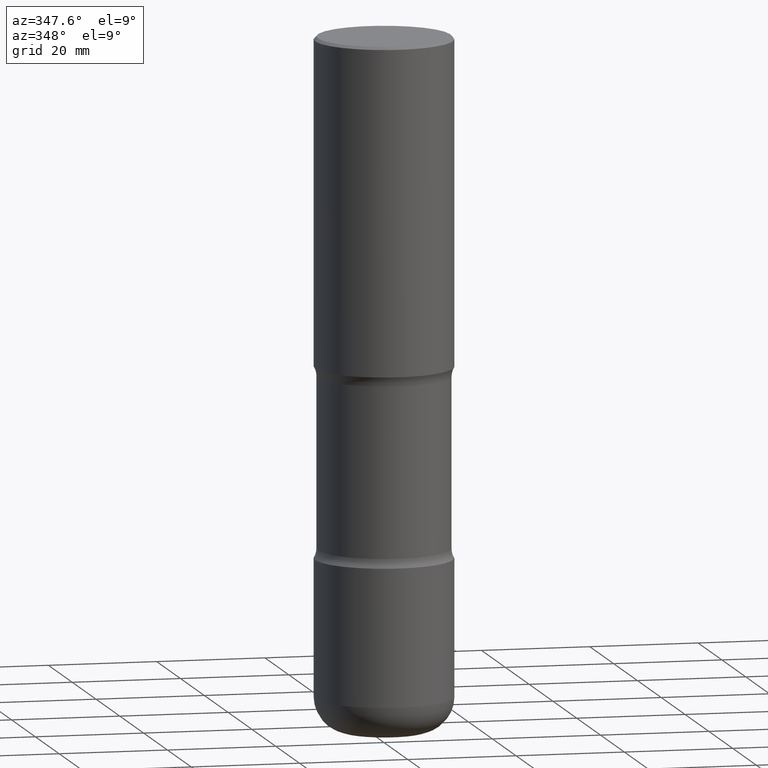
[diagram: clean part render]
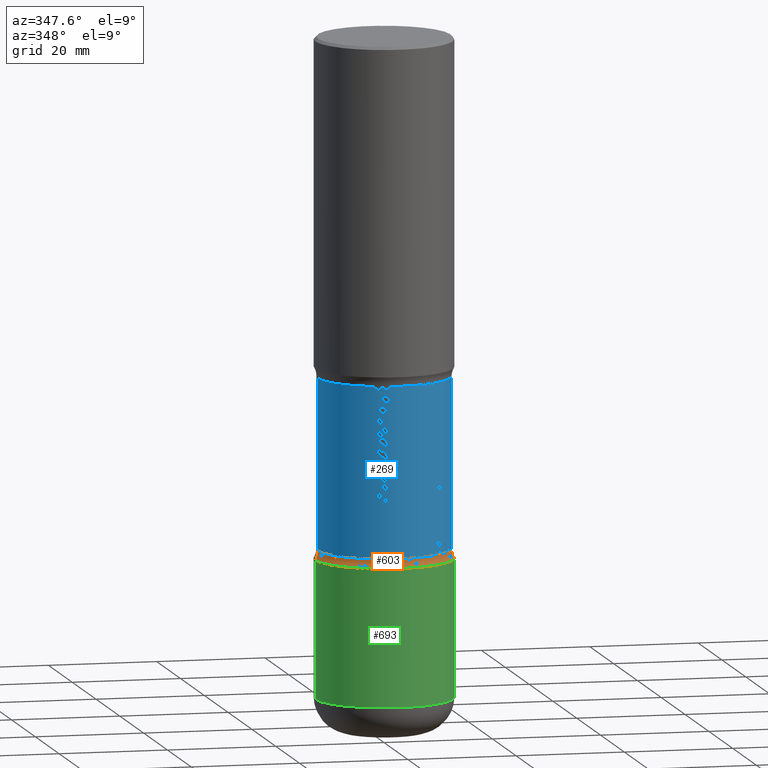
[diagram: same view with three faces highlighted in distinct colors, each labeled with its STEP entity id]
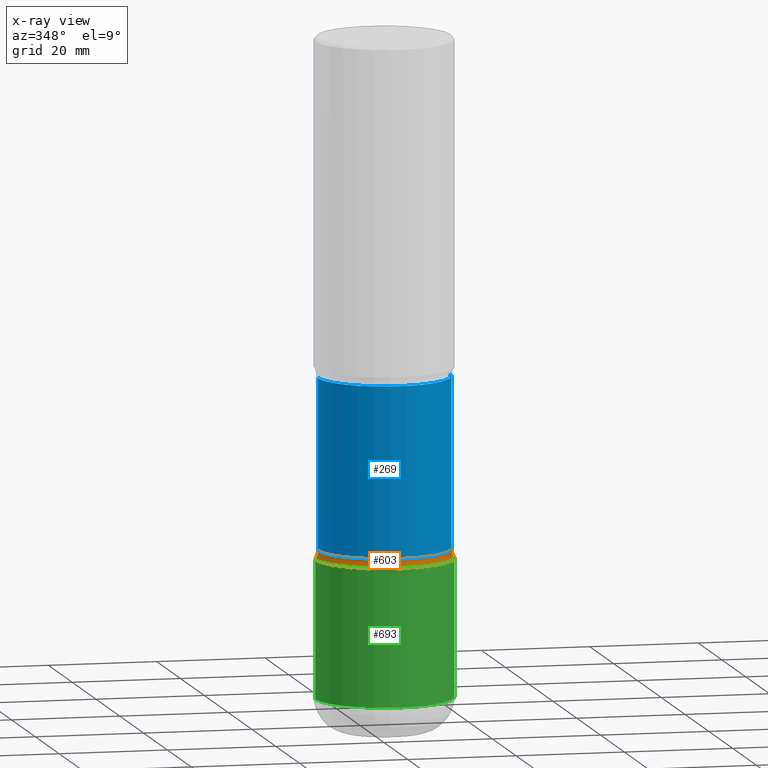
[diagram: x-ray of the same camera — body ghosted, the three highlighted faces saturated]
A machine part, auxiliary view with three faces highlighted in distinct colors.
The next image is the same camera in x-ray (body ghosted, the three faces saturated) — at least one of them is partly hidden behind the body in this view.
Their STEP definitions:

[orange] entity #603 — the highlighted toroidal blend (fillet) surface has major radius 15.367 mm and minor (blend) radius 3.175 mm.
#34 = AXIS2_PLACEMENT_3D ( 'NONE', #288, #538, #45 ) ;
#45 = DIRECTION ( 'NONE',  ( 1.000000000000000000, -6.982962677686276966E-15, 0.000000000000000000 ) ) ;
#47 = ORIENTED_EDGE ( 'NONE', *, *, #433, .T. ) ;
#96 = VERTEX_POINT ( 'NONE', #621 ) ;
#97 = DIRECTION ( 'NONE',  ( -1.000000000000000000, 7.105427357601001859E-15, 0.000000000000000000 ) ) ;
#99 = DIRECTION ( 'NONE',  ( 1.000000000000000000, -6.982962677686267499E-15, 4.883557194083112901E-29 ) ) ;
#116 = ORIENTED_EDGE ( 'NONE', *, *, #698, .T. ) ;
#124 = DIRECTION ( 'NONE',  ( -2.445468806185136597E-29, 3.491481338843145583E-15, 1.000000000000000000 ) ) ;
#160 = CARTESIAN_POINT ( 'NONE',  ( -0.6050000000000000933, -8.557467683613607939E-15, -3.682176700168747541 ) ) ;
#182 = ORIENTED_EDGE ( 'NONE', *, *, #342, .F. ) ;
#197 = CARTESIAN_POINT ( 'NONE',  ( 9.004648259124392254E-29, -1.285625123496221394E-14, -3.682176700168747541 ) ) ;
#288 = CARTESIAN_POINT ( 'NONE',  ( 0.6050000000000000933, -1.708094365496240561E-14, -3.682176700168747541 ) ) ;
#312 = AXIS2_PLACEMENT_3D ( 'NONE', #332, #743, #800 ) ;
#332 = CARTESIAN_POINT ( 'NONE',  ( 9.004648259124392254E-29, -1.285625123496221394E-14, -3.682176700168747541 ) ) ;
#342 = EDGE_CURVE ( 'NONE', #96, #398, #736, .T. ) ;
#365 = DIRECTION ( 'NONE',  ( 1.000000000000000000, -6.982962677686266711E-15, 0.000000000000000000 ) ) ;
#398 = VERTEX_POINT ( 'NONE', #626 ) ;
#408 = DIRECTION ( 'NONE',  ( 7.105427357601001859E-15, 1.000000000000000000, -3.491481338843145583E-15 ) ) ;
#433 = EDGE_CURVE ( 'NONE', #648, #398, #712, .T. ) ;
#513 = CARTESIAN_POINT ( 'NONE',  ( -0.5000000000000001110, -9.540341341861294907E-15, -3.750000000000000000 ) ) ;
#517 = CARTESIAN_POINT ( 'NONE',  ( -0.4800000000000002043, -9.492993722587514039E-15, -3.682176700168747541 ) ) ;
#538 = DIRECTION ( 'NONE',  ( -6.982962677686266711E-15, -1.000000000000000000, 3.491481338843145583E-15 ) ) ;
#547 = AXIS2_PLACEMENT_3D ( 'NONE', #553, #124, #365 ) ;
#553 = CARTESIAN_POINT ( 'NONE',  ( 9.170508023194262238E-29, -1.309305502066179741E-14, -3.750000000000000000 ) ) ;
#577 = CIRCLE ( 'NONE', #312, 0.4800000000000001488 ) ;
#593 = AXIS2_PLACEMENT_3D ( 'NONE', #160, #408, #97 ) ;
#603 = ADVANCED_FACE ( 'NONE', ( #629 ), #631, .F. ) ;
#621 = CARTESIAN_POINT ( 'NONE',  ( 0.4800000000000001488, -1.620807332025162227E-14, -3.682176700168747541 ) ) ;
#626 = CARTESIAN_POINT ( 'NONE',  ( 0.5000000000000001110, -1.658453635950493077E-14, -3.750000000000000000 ) ) ;
#629 = FACE_OUTER_BOUND ( 'NONE', #769, .T. ) ;
#631 = TOROIDAL_SURFACE ( 'NONE', #699, 0.6050000000000000933, 0.1250000000000000000 ) ;
#647 = EDGE_CURVE ( 'NONE', #649, #96, #577, .T. ) ;
#648 = VERTEX_POINT ( 'NONE', #513 ) ;
#649 = VERTEX_POINT ( 'NONE', #517 ) ;
#663 = DIRECTION ( 'NONE',  ( -2.445468806185136597E-29, 3.491481338843145583E-15, 1.000000000000000000 ) ) ;
#679 = CIRCLE ( 'NONE', #593, 0.1250000000000000278 ) ;
#698 = EDGE_CURVE ( 'NONE', #649, #648, #679, .T. ) ;
#699 = AXIS2_PLACEMENT_3D ( 'NONE', #197, #663, #99 ) ;
#712 = CIRCLE ( 'NONE', #547, 0.5000000000000000000 ) ;
#736 = CIRCLE ( 'NONE', #34, 0.1250000000000000278 ) ;
#743 = DIRECTION ( 'NONE',  ( -2.445468806185136597E-29, 3.491481338843145583E-15, 1.000000000000000000 ) ) ;
#767 = ORIENTED_EDGE ( 'NONE', *, *, #647, .F. ) ;
#769 = EDGE_LOOP ( 'NONE', ( #767, #116, #47, #182 ) ) ;
#800 = DIRECTION ( 'NONE',  ( 1.000000000000000000, -6.982962677686265922E-15, 0.000000000000000000 ) ) ;

[blue] entity #269 — the highlighted cylindrical surface (partial cylindrical patch) has radius 12.192 mm, axis along (-0, 0, 1).
#66 = LINE ( 'NONE', #336, #437 ) ;
#84 = DIRECTION ( 'NONE',  ( 1.000000000000000000, -6.982962677686264344E-15, 0.000000000000000000 ) ) ;
#96 = VERTEX_POINT ( 'NONE', #621 ) ;
#119 = CIRCLE ( 'NONE', #576, 0.4800000000000000933 ) ;
#138 = DIRECTION ( 'NONE',  ( 1.000000000000000000, -6.982962677686268288E-15, 0.000000000000000000 ) ) ;
#203 = DIRECTION ( 'NONE',  ( -2.445468806185136597E-29, 3.491481338843145583E-15, 1.000000000000000000 ) ) ;
#206 = EDGE_CURVE ( 'NONE', #96, #501, #66, .T. ) ;
#219 = CARTESIAN_POINT ( 'NONE',  ( 5.973848178759569401E-29, -8.529071965452053594E-15, -2.442823299831252903 ) ) ;
#238 = EDGE_CURVE ( 'NONE', #650, #501, #119, .T. ) ;
#269 = ADVANCED_FACE ( 'NONE', ( #687 ), #328, .T. ) ;
#294 = ORIENTED_EDGE ( 'NONE', *, *, #647, .T. ) ;
#307 = CARTESIAN_POINT ( 'NONE',  ( 0.4800000000000000933, -1.188089405074146193E-14, -2.442823299831252903 ) ) ;
#312 = AXIS2_PLACEMENT_3D ( 'NONE', #332, #743, #800 ) ;
#328 = CYLINDRICAL_SURFACE ( 'NONE', #531, 0.4800000000000000933 ) ;
#332 = CARTESIAN_POINT ( 'NONE',  ( 9.004648259124392254E-29, -1.285625123496221394E-14, -3.682176700168747541 ) ) ;
#336 = CARTESIAN_POINT ( 'NONE',  ( 0.4800000000000000933, -1.164409026504188161E-14, -2.375000000000000000 ) ) ;
#392 = EDGE_LOOP ( 'NONE', ( #748, #294, #708, #595 ) ) ;
#430 = CARTESIAN_POINT ( 'NONE',  ( -0.4800000000000000933, -4.881663048103990141E-15, -2.375000000000000000 ) ) ;
#437 = VECTOR ( 'NONE', #644, 39.37007874015748143 ) ;
#441 = EDGE_CURVE ( 'NONE', #649, #650, #722, .T. ) ;
#501 = VERTEX_POINT ( 'NONE', #307 ) ;
#517 = CARTESIAN_POINT ( 'NONE',  ( -0.4800000000000002043, -9.492993722587514039E-15, -3.682176700168747541 ) ) ;
#521 = VECTOR ( 'NONE', #788, 39.37007874015748143 ) ;
#531 = AXIS2_PLACEMENT_3D ( 'NONE', #574, #203, #138 ) ;
#574 = CARTESIAN_POINT ( 'NONE',  ( 5.807988414689700538E-29, -8.292268179752471696E-15, -2.375000000000000000 ) ) ;
#576 = AXIS2_PLACEMENT_3D ( 'NONE', #219, #704, #84 ) ;
#577 = CIRCLE ( 'NONE', #312, 0.4800000000000001488 ) ;
#595 = ORIENTED_EDGE ( 'NONE', *, *, #238, .F. ) ;
#621 = CARTESIAN_POINT ( 'NONE',  ( 0.4800000000000001488, -1.620807332025162227E-14, -3.682176700168747541 ) ) ;
#644 = DIRECTION ( 'NONE',  ( -2.445468806185136877E-29, 3.491481338843145188E-15, 1.000000000000000000 ) ) ;
#647 = EDGE_CURVE ( 'NONE', #649, #96, #577, .T. ) ;
#649 = VERTEX_POINT ( 'NONE', #517 ) ;
#650 = VERTEX_POINT ( 'NONE', #691 ) ;
#687 = FACE_OUTER_BOUND ( 'NONE', #392, .T. ) ;
#691 = CARTESIAN_POINT ( 'NONE',  ( -0.4800000000000001488, -4.929010667377771008E-15, -2.442823299831252903 ) ) ;
#704 = DIRECTION ( 'NONE',  ( -2.445468806185136597E-29, 3.491481338843145583E-15, 1.000000000000000000 ) ) ;
#708 = ORIENTED_EDGE ( 'NONE', *, *, #206, .T. ) ;
#722 = LINE ( 'NONE', #430, #521 ) ;
#743 = DIRECTION ( 'NONE',  ( -2.445468806185136597E-29, 3.491481338843145583E-15, 1.000000000000000000 ) ) ;
#748 = ORIENTED_EDGE ( 'NONE', *, *, #441, .F. ) ;
#788 = DIRECTION ( 'NONE',  ( -2.445468806185136877E-29, 3.491481338843145188E-15, 1.000000000000000000 ) ) ;
#800 = DIRECTION ( 'NONE',  ( 1.000000000000000000, -6.982962677686265922E-15, 0.000000000000000000 ) ) ;

[green] entity #693 — the highlighted cylindrical surface (partial cylindrical patch) has radius 12.7 mm, axis along (-0, 0, 1).
#28 = DIRECTION ( 'NONE',  ( -2.445468806185136597E-29, 3.491481338843145583E-15, 1.000000000000000000 ) ) ;
#30 = CARTESIAN_POINT ( 'NONE',  ( 1.161597682937940108E-28, -1.658453635950494339E-14, -4.750000000000000000 ) ) ;
#46 = CARTESIAN_POINT ( 'NONE',  ( 0.4999999999999999445, -2.007601769834807675E-14, -4.750000000000000000 ) ) ;
#58 = CIRCLE ( 'NONE', #382, 0.5000000000000000000 ) ;
#93 = EDGE_CURVE ( 'NONE', #468, #166, #131, .T. ) ;
#114 = VERTEX_POINT ( 'NONE', #258 ) ;
#120 = DIRECTION ( 'NONE',  ( -2.445468806185136597E-29, 3.491481338843145583E-15, 1.000000000000000000 ) ) ;
#131 = CIRCLE ( 'NONE', #410, 0.5000000000000000000 ) ;
#133 = VECTOR ( 'NONE', #351, 39.37007874015748143 ) ;
#166 = VERTEX_POINT ( 'NONE', #266 ) ;
#195 = EDGE_CURVE ( 'NONE', #114, #468, #634, .T. ) ;
#200 = VECTOR ( 'NONE', #646, 39.37007874015748143 ) ;
#254 = ORIENTED_EDGE ( 'NONE', *, *, #429, .T. ) ;
#258 = CARTESIAN_POINT ( 'NONE',  ( -0.4999999999999999445, -1.303182268070444246E-14, -4.750000000000000000 ) ) ;
#266 = CARTESIAN_POINT ( 'NONE',  ( 0.5000000000000000000, -1.658453635950493077E-14, -3.750000000000000000 ) ) ;
#295 = DIRECTION ( 'NONE',  ( -2.445468806185136597E-29, 3.491481338843145583E-15, 1.000000000000000000 ) ) ;
#296 = FACE_OUTER_BOUND ( 'NONE', #353, .T. ) ;
#351 = DIRECTION ( 'NONE',  ( -2.445468806185136877E-29, 3.491481338843145188E-15, 1.000000000000000000 ) ) ;
#353 = EDGE_LOOP ( 'NONE', ( #539, #254, #587, #774 ) ) ;
#362 = EDGE_CURVE ( 'NONE', #503, #166, #530, .T. ) ;
#374 = DIRECTION ( 'NONE',  ( 1.000000000000000000, -6.982962677686266711E-15, 0.000000000000000000 ) ) ;
#382 = AXIS2_PLACEMENT_3D ( 'NONE', #30, #295, #715 ) ;
#410 = AXIS2_PLACEMENT_3D ( 'NONE', #442, #120, #374 ) ;
#429 = EDGE_CURVE ( 'NONE', #114, #503, #58, .T. ) ;
#442 = CARTESIAN_POINT ( 'NONE',  ( 9.170508023194262238E-29, -1.309305502066179741E-14, -3.750000000000000000 ) ) ;
#463 = CARTESIAN_POINT ( 'NONE',  ( 0.000000000000000000, 0.000000000000000000, 0.000000000000000000 ) ) ;
#465 = CARTESIAN_POINT ( 'NONE',  ( -0.5000000000000000000, 3.552713678800500929E-15, -2.459467545127452891E-29 ) ) ;
#468 = VERTEX_POINT ( 'NONE', #490 ) ;
#490 = CARTESIAN_POINT ( 'NONE',  ( -0.5000000000000000000, -1.128608201128286947E-14, -3.750000000000000000 ) ) ;
#503 = VERTEX_POINT ( 'NONE', #46 ) ;
#523 = AXIS2_PLACEMENT_3D ( 'NONE', #463, #28, #707 ) ;
#530 = LINE ( 'NONE', #762, #133 ) ;
#539 = ORIENTED_EDGE ( 'NONE', *, *, #195, .F. ) ;
#587 = ORIENTED_EDGE ( 'NONE', *, *, #362, .T. ) ;
#634 = LINE ( 'NONE', #465, #200 ) ;
#646 = DIRECTION ( 'NONE',  ( -2.445468806185136877E-29, 3.491481338843145188E-15, 1.000000000000000000 ) ) ;
#659 = CYLINDRICAL_SURFACE ( 'NONE', #523, 0.5000000000000000000 ) ;
#693 = ADVANCED_FACE ( 'NONE', ( #296 ), #659, .T. ) ;
#707 = DIRECTION ( 'NONE',  ( 1.000000000000000000, -6.982962677686266711E-15, 4.876176775795935793E-29 ) ) ;
#715 = DIRECTION ( 'NONE',  ( 1.000000000000000000, -6.982962677686266711E-15, 0.000000000000000000 ) ) ;
#762 = CARTESIAN_POINT ( 'NONE',  ( 0.5000000000000000000, -3.491481338843133355E-15, 2.438088387897967896E-29 ) ) ;
#774 = ORIENTED_EDGE ( 'NONE', *, *, #93, .F. ) ;